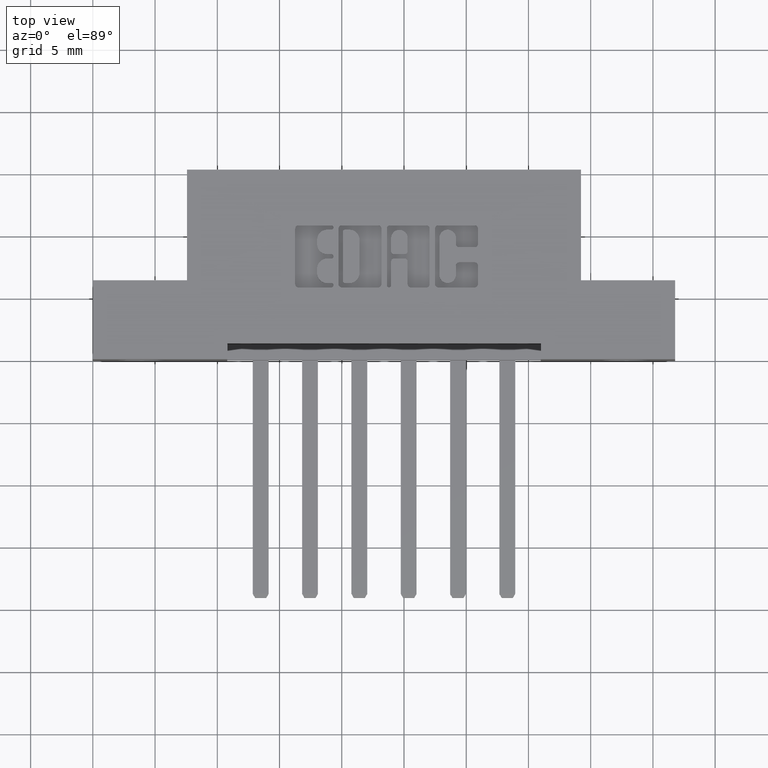
[diagram: clean part render]
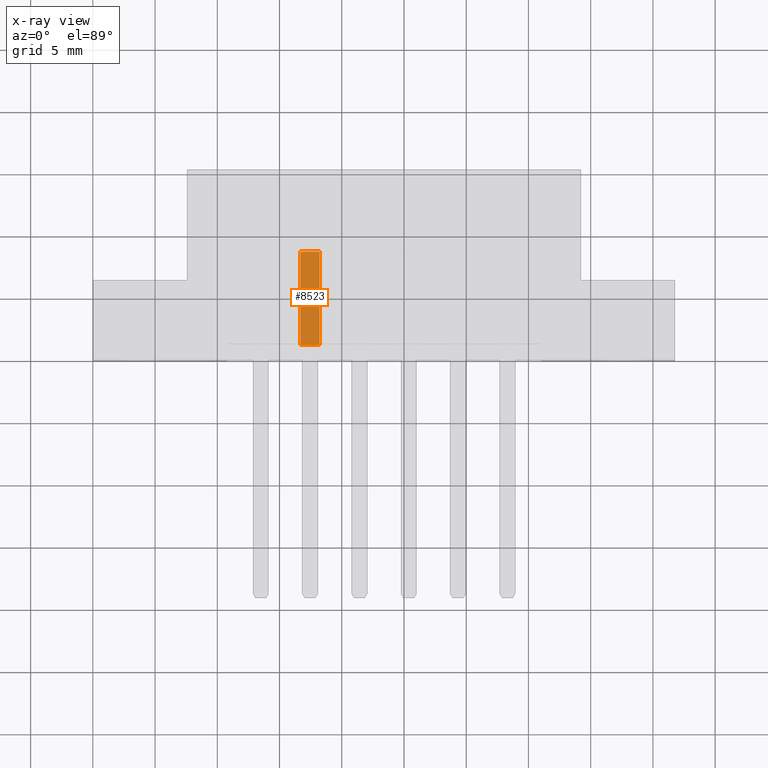
[diagram: x-ray — body ghosted, one internal face saturated and labeled with its STEP entity id]
A machine part, top view, then the same camera in x-ray: the body is ghosted and one INTERNAL B-rep face — a face not visible from any outside direction — is saturated and labeled: STEP entity #8523.
In plain terms, the highlighted planar face has unit normal (0, -0, 1).
Its self-contained STEP definition (entity closure, byte-faithful):
#234 = LINE ( 'NONE', #5318, #2351 ) ;
#289 = VERTEX_POINT ( 'NONE', #6312 ) ;
#670 = CARTESIAN_POINT ( 'NONE',  ( 0.6570000000000000300, 0.3450000000000002000, -0.2725000000000000200 ) ) ;
#1099 = FACE_OUTER_BOUND ( 'NONE', #2472, .T. ) ;
#1134 = LINE ( 'NONE', #3071, #2984 ) ;
#1338 = DIRECTION ( 'NONE',  ( 0.0000000000000000000, -1.000000000000000000, -1.979599995408886100E-016 ) ) ;
#1343 = VECTOR ( 'NONE', #4124, 39.37007874015748100 ) ;
#1438 = EDGE_CURVE ( 'NONE', #9209, #289, #1134, .T. ) ;
#2077 = ORIENTED_EDGE ( 'NONE', *, *, #1438, .T. ) ;
#2181 = DIRECTION ( 'NONE',  ( 0.0000000000000000000, -1.000000000000000000, -1.979599995408885400E-016 ) ) ;
#2351 = VECTOR ( 'NONE', #6973, 39.37007874015748100 ) ;
#2472 = EDGE_LOOP ( 'NONE', ( #9711, #8991, #2077, #9057 ) ) ;
#2868 = CARTESIAN_POINT ( 'NONE',  ( 0.7170000000000000800, 0.05000000000000001000, -0.2725000000000000800 ) ) ;
#2915 = EDGE_CURVE ( 'NONE', #4242, #9814, #234, .T. ) ;
#2984 = VECTOR ( 'NONE', #4607, 39.37007874015748100 ) ;
#3071 = CARTESIAN_POINT ( 'NONE',  ( 0.6570000000000000300, 0.3450000000000002000, -0.2725000000000000200 ) ) ;
#3119 = EDGE_CURVE ( 'NONE', #289, #4242, #3438, .T. ) ;
#3438 = LINE ( 'NONE', #6494, #1343 ) ;
#3571 = AXIS2_PLACEMENT_3D ( 'NONE', #6015, #9162, #1338 ) ;
#4124 = DIRECTION ( 'NONE',  ( 0.0000000000000000000, -1.000000000000000000, -1.979599995408885400E-016 ) ) ;
#4242 = VERTEX_POINT ( 'NONE', #2868 ) ;
#4607 = DIRECTION ( 'NONE',  ( 1.000000000000000000, -0.0000000000000000000, -0.0000000000000000000 ) ) ;
#5318 = CARTESIAN_POINT ( 'NONE',  ( 1.417000000000000700, 0.05000000000000000300, -0.2725000000000000800 ) ) ;
#6015 = CARTESIAN_POINT ( 'NONE',  ( 0.6570000000000000300, 0.3450000000000002000, -0.2725000000000000200 ) ) ;
#6312 = CARTESIAN_POINT ( 'NONE',  ( 0.7170000000000000800, 0.3450000000000002000, -0.2725000000000000200 ) ) ;
#6351 = CARTESIAN_POINT ( 'NONE',  ( 0.6570000000000000300, 0.3450000000000002000, -0.2725000000000000200 ) ) ;
#6494 = CARTESIAN_POINT ( 'NONE',  ( 0.7170000000000000800, 0.3450000000000002000, -0.2725000000000000200 ) ) ;
#6973 = DIRECTION ( 'NONE',  ( -1.000000000000000000, 0.0000000000000000000, 0.0000000000000000000 ) ) ;
#7309 = EDGE_CURVE ( 'NONE', #9209, #9814, #9633, .T. ) ;
#7378 = CARTESIAN_POINT ( 'NONE',  ( 0.6570000000000000300, 0.05000000000000001000, -0.2725000000000000800 ) ) ;
#8281 = PLANE ( 'NONE',  #3571 ) ;
#8523 = ADVANCED_FACE ( 'NONE', ( #1099 ), #8281, .F. ) ;
#8786 = VECTOR ( 'NONE', #2181, 39.37007874015748100 ) ;
#8991 = ORIENTED_EDGE ( 'NONE', *, *, #7309, .F. ) ;
#9057 = ORIENTED_EDGE ( 'NONE', *, *, #3119, .T. ) ;
#9162 = DIRECTION ( 'NONE',  ( 0.0000000000000000000, -1.979599995408886100E-016, 1.000000000000000000 ) ) ;
#9209 = VERTEX_POINT ( 'NONE', #6351 ) ;
#9633 = LINE ( 'NONE', #670, #8786 ) ;
#9711 = ORIENTED_EDGE ( 'NONE', *, *, #2915, .T. ) ;
#9814 = VERTEX_POINT ( 'NONE', #7378 ) ;